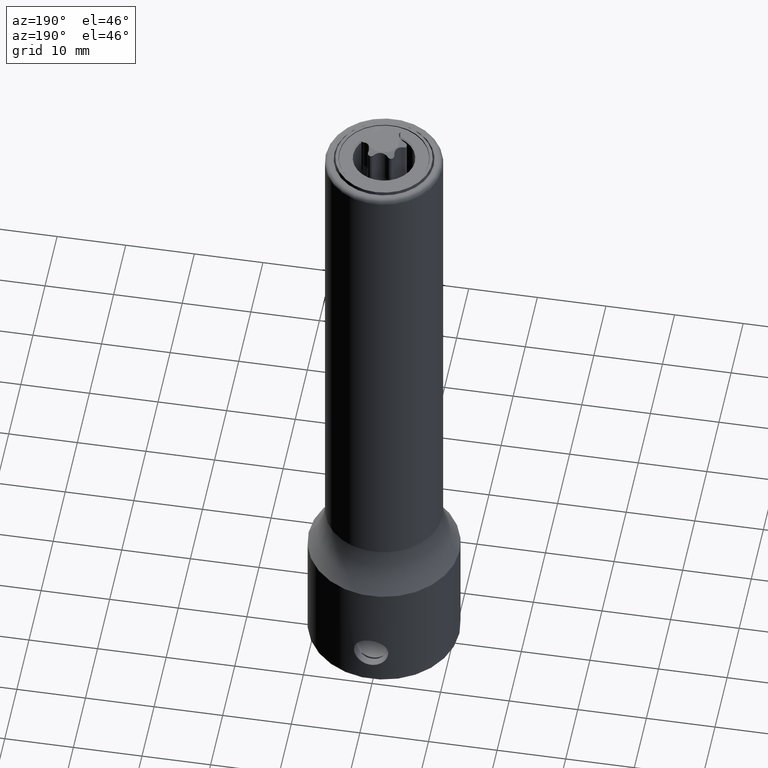
[diagram: clean part render]
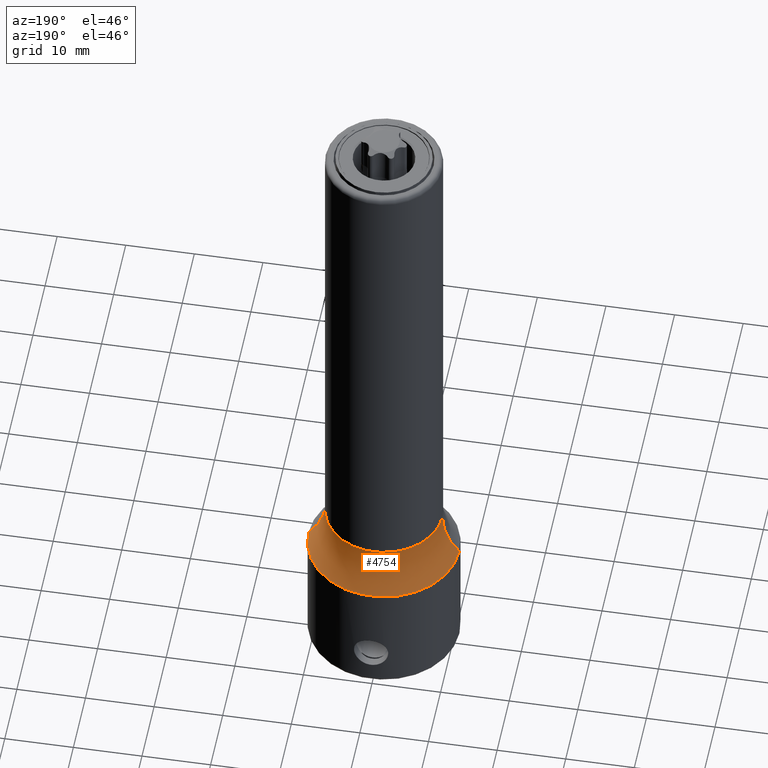
[diagram: same view with one face highlighted and labeled with its STEP entity id]
A machine part, auxiliary view. The second image highlights one B-rep face of the part: STEP entity #4754.
In plain terms, the highlighted toroidal blend (fillet) surface has major radius 18.5 mm and minor (blend) radius 10 mm.
Its self-contained STEP definition (entity closure, byte-faithful):
#4132=CARTESIAN_POINT('',(0.E0,0.E0,1.720000005626E1));
#4133=DIRECTION('',(0.E0,0.E0,1.E0));
#4134=DIRECTION('',(-1.E0,0.E0,0.E0));
#4135=AXIS2_PLACEMENT_3D('',#4132,#4133,#4134);
#4219=CARTESIAN_POINT('',(1.849999999977E1,-9.243224366408E-5,
2.381437833392E1));
#4220=DIRECTION('',(4.996337495392E-6,9.999999999875E-1,0.E0));
#4221=DIRECTION('',(-7.499999970815E-1,3.747253107009E-6,-6.614378310648E-1));
#4222=AXIS2_PLACEMENT_3D('',#4219,#4220,#4221);
#4227=CARTESIAN_POINT('',(-1.849999999977E1,9.243224367388E-5,
2.381437833392E1));
#4228=DIRECTION('',(-4.996337495849E-6,-9.999999999875E-1,0.E0));
#4229=DIRECTION('',(7.499999970815E-1,-3.747253107352E-6,-6.614378310648E-1));
#4230=AXIS2_PLACEMENT_3D('',#4227,#4228,#4229);
#4243=CARTESIAN_POINT('',(0.E0,0.E0,2.381437833392E1));
#4244=DIRECTION('',(0.E0,0.E0,1.E0));
#4245=DIRECTION('',(-1.E0,0.E0,0.E0));
#4246=AXIS2_PLACEMENT_3D('',#4243,#4244,#4245);
#4451=CARTESIAN_POINT('',(-1.1E1,0.E0,1.720000005626E1));
#4452=CARTESIAN_POINT('',(1.1E1,0.E0,1.720000005626E1));
#4453=VERTEX_POINT('',#4451);
#4454=VERTEX_POINT('',#4452);
#4455=CARTESIAN_POINT('',(-8.5E0,0.E0,2.381437833392E1));
#4456=CARTESIAN_POINT('',(8.5E0,0.E0,2.381437833392E1));
#4457=VERTEX_POINT('',#4455);
#4458=VERTEX_POINT('',#4456);
#4742=CARTESIAN_POINT('',(0.E0,0.E0,2.381437833392E1));
#4743=DIRECTION('',(0.E0,0.E0,1.E0));
#4744=DIRECTION('',(-9.999999844584E-1,1.763044317083E-4,0.E0));
#4745=AXIS2_PLACEMENT_3D('',#4742,#4743,#4744);
#4746=TOROIDAL_SURFACE('',#4745,1.85E1,1.E1);
#4747=ORIENTED_EDGE('',*,*,#4676,.F.);
#4748=ORIENTED_EDGE('',*,*,#4737,.T.);
#4750=ORIENTED_EDGE('',*,*,#4749,.T.);
#4751=ORIENTED_EDGE('',*,*,#4733,.F.);
#4752=EDGE_LOOP('',(#4747,#4748,#4750,#4751));
#4753=FACE_OUTER_BOUND('',#4752,.F.);
#4754=ADVANCED_FACE('',(#4753),#4746,.F.);
#4136=CIRCLE('',#4135,1.1E1);
#4223=CIRCLE('',#4222,1.E1);
#4231=CIRCLE('',#4230,1.E1);
#4247=CIRCLE('',#4246,8.5E0);
#4676=EDGE_CURVE('',#4453,#4454,#4136,.T.);
#4733=EDGE_CURVE('',#4454,#4458,#4223,.T.);
#4737=EDGE_CURVE('',#4453,#4457,#4231,.T.);
#4749=EDGE_CURVE('',#4457,#4458,#4247,.T.);